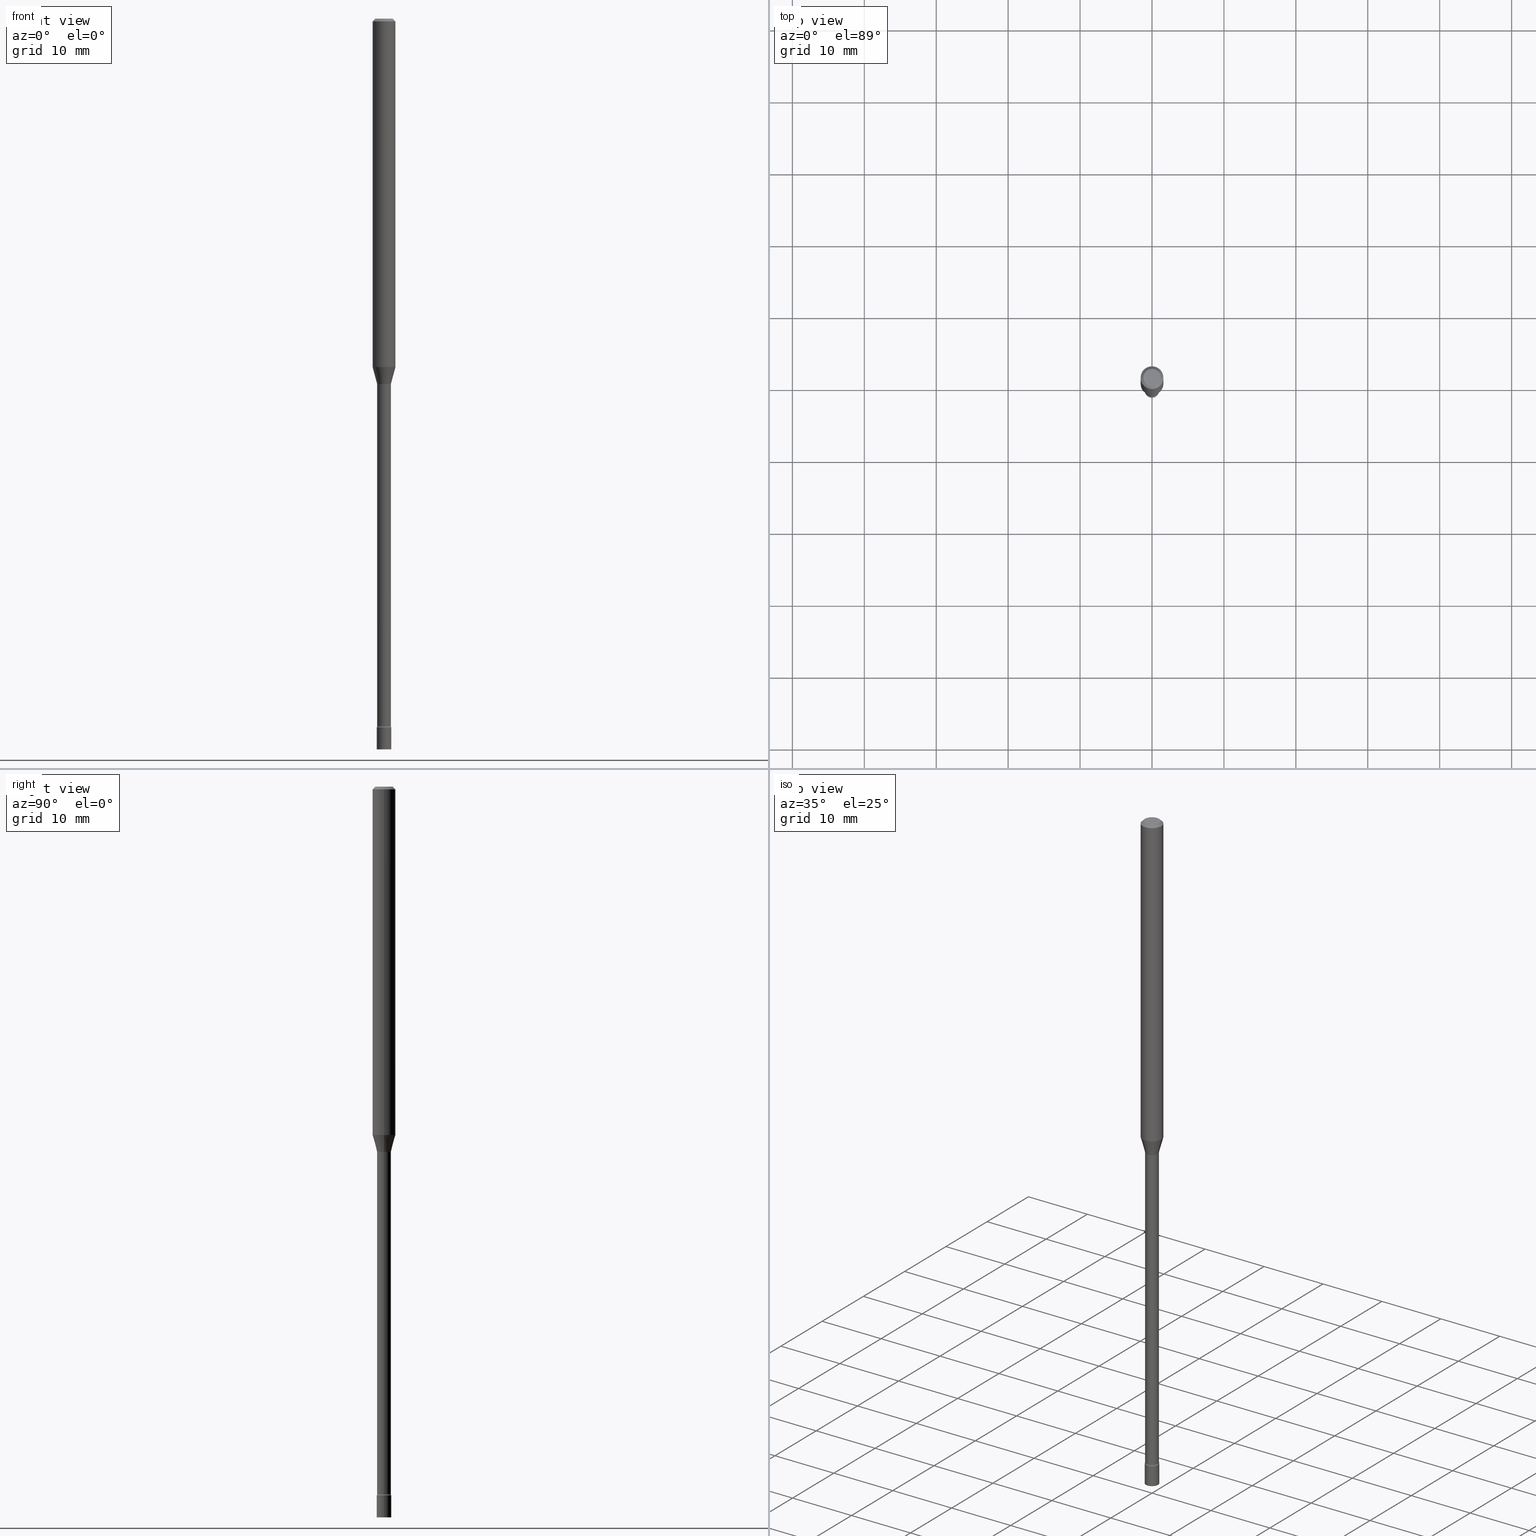
[diagram: canonical four-view strip — front | top / right | iso, engineering-drawing reading convention]
A machine part, canonical four-view strip (front | top / right | iso — engineering-drawing reading convention). The complete STEP part file that produces these views, byte-faithful:
ISO-10303-21;
HEADER;
FILE_DESCRIPTION (( 'STEP AP203' ),
    '1' );
FILE_NAME ('09724.STEP',
    '2024-03-09T01:17:45',
    ( '' ),
    ( '' ),
    'SwSTEP 2.0',
    'SolidWorks 2023',
    '' );
FILE_SCHEMA (( 'CONFIG_CONTROL_DESIGN' ));
ENDSEC;

DATA;
#1 = DIRECTION ( 'NONE',  ( 1.000000000000000000, -6.982962677686284065E-15, 0.000000000000000000 ) ) ;
#2 = VECTOR ( 'NONE', #272, 39.37007874015748143 ) ;
#3 = ORIENTED_EDGE ( 'NONE', *, *, #23, .T. ) ;
#4 = CIRCLE ( 'NONE', #262, 0.04749999999999999362 ) ;
#5 = DIRECTION ( 'NONE',  ( -2.445468806185136597E-29, 3.491481338843145583E-15, 1.000000000000000000 ) ) ;
#6 = ORIENTED_EDGE ( 'NONE', *, *, #394, .T. ) ;
#7 = DIRECTION ( 'NONE',  ( -2.445468806185136597E-29, 3.491481338843145583E-15, 1.000000000000000000 ) ) ;
#8 = EDGE_CURVE ( 'NONE', #124, #239, #4, .T. ) ;
#9 = ORIENTED_EDGE ( 'NONE', *, *, #89, .F. ) ;
#10 = CARTESIAN_POINT ( 'NONE',  ( 0.000000000000000000, 0.000000000000000000, 0.000000000000000000 ) ) ;
#11 = ORIENTED_EDGE ( 'NONE', *, *, #98, .T. ) ;
#12 = CIRCLE ( 'NONE', #58, 0.06250000000000000000 ) ;
#13 = DIRECTION ( 'NONE',  ( 1.000000000000000000, -6.982962677686265922E-15, 4.876176775795935793E-29 ) ) ;
#14 = CARTESIAN_POINT ( 'NONE',  ( 0.05260000000000022990, -1.388583497727375524E-14, -3.871861204020250025 ) ) ;
#15 = ADVANCED_FACE ( 'NONE', ( #222 ), #107, .T. ) ;
#16 = APPROVAL ( #26, 'UNSPECIFIED' ) ;
#17 = CARTESIAN_POINT ( 'NONE',  ( 9.488418967998330085E-29, -1.354694759471140570E-14, -3.880000000000000338 ) ) ;
#18 = DIRECTION ( 'NONE',  ( 1.000000000000000000, -6.982962677686284065E-15, 0.000000000000000000 ) ) ;
#19 = FACE_OUTER_BOUND ( 'NONE', #416, .T. ) ;
#20 = DESIGN_CONTEXT ( 'detailed design', #424, 'design' ) ;
#21 = AXIS2_PLACEMENT_3D ( 'NONE', #294, #306, #55 ) ;
#22 = LENGTH_MEASURE_WITH_UNIT ( LENGTH_MEASURE( 0.02539999999999999897 ), #225 );
#23 = EDGE_CURVE ( 'NONE', #290, #414, #355, .T. ) ;
#24 = VERTEX_POINT ( 'NONE', #76 ) ;
#25 = PRODUCT ( '09724', '09724', '', ( #510 ) ) ;
#26 = APPROVAL_STATUS ( 'not_yet_approved' ) ;
#27 = CALENDAR_DATE ( 2024, 8, 3 ) ;
#28 = AXIS2_PLACEMENT_3D ( 'NONE', #349, #270, #265 ) ;
#29 = AXIS2_PLACEMENT_3D ( 'NONE', #271, #150, #466 ) ;
#30 = EDGE_CURVE ( 'NONE', #153, #336, #452, .T. ) ;
#31 = PERSON_AND_ORGANIZATION ( #371, #432 ) ;
#32 = ORIENTED_EDGE ( 'NONE', *, *, #245, .T. ) ;
#33 = CARTESIAN_POINT ( 'NONE',  ( 9.488418967998330085E-29, -1.354694759471140570E-14, -3.880000000000000338 ) ) ;
#34 = ORIENTED_EDGE ( 'NONE', *, *, #66, .F. ) ;
#35 = DIRECTION ( 'NONE',  ( 1.000000000000000000, -6.982962677686261977E-15, 0.000000000000000000 ) ) ;
#36 = CIRCLE ( 'NONE', #110, 0.04000000000000000083 ) ;
#37 = EDGE_CURVE ( 'NONE', #290, #326, #111, .T. ) ;
#38 = VECTOR ( 'NONE', #63, 39.37007874015748143 ) ;
#39 = DATE_TIME_ROLE ( 'creation_date' ) ;
#40 = CC_DESIGN_PERSON_AND_ORGANIZATION_ASSIGNMENT ( #45, #83, ( #68 ) ) ;
#41 = CARTESIAN_POINT ( 'NONE',  ( 0.03811111260566397985, -7.242431160203128741E-15, -1.998092501787273045 ) ) ;
#42 = ORIENTED_EDGE ( 'NONE', *, *, #237, .F. ) ;
#43 = DIRECTION ( 'NONE',  ( -2.438088387897960049E-29, 3.491481338843145188E-15, 1.000000000000000000 ) ) ;
#44 = ORIENTED_EDGE ( 'NONE', *, *, #114, .F. ) ;
#45 = PERSON_AND_ORGANIZATION ( #371, #432 ) ;
#46 = LINE ( 'NONE', #196, #509 ) ;
#47 = AXIS2_PLACEMENT_3D ( 'NONE', #413, #382, #95 ) ;
#48 = ORIENTED_EDGE ( 'NONE', *, *, #299, .T. ) ;
#49 = SECURITY_CLASSIFICATION ( '', '', #78 ) ;
#50 = DIRECTION ( 'NONE',  ( 1.000000000000000000, -6.982962677686261977E-15, 4.883557194083110659E-29 ) ) ;
#51 = EDGE_LOOP ( 'NONE', ( #44, #256, #6, #324 ) ) ;
#52 = DIRECTION ( 'NONE',  ( 1.000000000000000000, -6.982962677686284065E-15, 0.000000000000000000 ) ) ;
#53 = ORIENTED_EDGE ( 'NONE', *, *, #393, .T. ) ;
#54 = EDGE_CURVE ( 'NONE', #340, #202, #457, .T. ) ;
#55 = DIRECTION ( 'NONE',  ( 1.000000000000000000, -6.982962677686262766E-15, 0.000000000000000000 ) ) ;
#56 = ADVANCED_FACE ( 'NONE', ( #65 ), #339, .T. ) ;
#57 = ORIENTED_EDGE ( 'NONE', *, *, #507, .T. ) ;
#58 = AXIS2_PLACEMENT_3D ( 'NONE', #169, #301, #296 ) ;
#59 = FACE_OUTER_BOUND ( 'NONE', #491, .T. ) ;
#60 = CC_DESIGN_DATE_AND_TIME_ASSIGNMENT ( #475, #407, ( #49 ) ) ;
#61 = DIRECTION ( 'NONE',  ( -2.445468806185136597E-29, 3.491481338843145583E-15, 1.000000000000000000 ) ) ;
#62 = DIRECTION ( 'NONE',  ( -2.445468806185136597E-29, 3.491481338843145583E-15, 1.000000000000000000 ) ) ;
#63 = DIRECTION ( 'NONE',  ( -2.445468806185136877E-29, 3.491481338843145188E-15, 1.000000000000000000 ) ) ;
#64 = DIRECTION ( 'NONE',  ( -2.445468806185136597E-29, 3.491481338843145583E-15, 1.000000000000000000 ) ) ;
#65 = FACE_OUTER_BOUND ( 'NONE', #254, .T. ) ;
#66 = EDGE_CURVE ( 'NONE', #202, #379, #497, .T. ) ;
#67 = CIRCLE ( 'NONE', #175, 0.01500000000000001853 ) ;
#68 = PRODUCT_DEFINITION_FORMATION_WITH_SPECIFIED_SOURCE ( 'ANY', '', #25, .NOT_KNOWN. ) ;
#69 = CARTESIAN_POINT ( 'NONE',  ( 0.04000000000000000083, -1.382626610181885731E-14, -3.880000000000000338 ) ) ;
#70 = EDGE_CURVE ( 'NONE', #128, #414, #361, .T. ) ;
#71 = DIRECTION ( 'NONE',  ( -2.445468806185136597E-29, 3.491481338843145583E-15, 1.000000000000000000 ) ) ;
#72 = CIRCLE ( 'NONE', #131, 0.04000000000000000083 ) ;
#73 = DIRECTION ( 'NONE',  ( -1.000000000000000000, 6.982962677686266711E-15, 0.000000000000000000 ) ) ;
#74 = AXIS2_PLACEMENT_3D ( 'NONE', #419, #61, #381 ) ;
#75 = DATE_AND_TIME ( #240, #234 ) ;
#76 = CARTESIAN_POINT ( 'NONE',  ( 0.03811111260566397985, -7.242431160203128741E-15, -1.998092501787273045 ) ) ;
#77 = ORIENTED_EDGE ( 'NONE', *, *, #113, .T. ) ;
#78 = SECURITY_CLASSIFICATION_LEVEL ( 'unclassified' ) ;
#79 = DIRECTION ( 'NONE',  ( 2.438088387897960049E-29, -3.491481338843145188E-15, -1.000000000000000000 ) ) ;
#80 = DIMENSIONAL_EXPONENTS ( 1.000000000000000000, 0.000000000000000000, 0.000000000000000000, 0.000000000000000000, 0.000000000000000000, 0.000000000000000000, 0.000000000000000000 ) ;
#81 = CARTESIAN_POINT ( 'NONE',  ( 0.04749999999999999362, -4.035134999187579609E-16, -2.891391092786643933E-17 ) ) ;
#82 = CIRCLE ( 'NONE', #21, 0.06250000000000000000 ) ;
#83 = PERSON_AND_ORGANIZATION_ROLE ( 'creator' ) ;
#84 = CARTESIAN_POINT ( 'NONE',  ( -0.03759999999999999454, -9.987030307200107072E-15, -2.001974787463811190 ) ) ;
#85 = ORIENTED_EDGE ( 'NONE', *, *, #205, .T. ) ;
#86 = PLANE ( 'NONE',  #274 ) ;
#87 = ADVANCED_FACE ( 'NONE', ( #19 ), #151, .T. ) ;
#88 = ORIENTED_EDGE ( 'NONE', *, *, #341, .F. ) ;
#89 = EDGE_CURVE ( 'NONE', #359, #476, #400, .T. ) ;
#90 = DIRECTION ( 'NONE',  ( -2.445468806185136597E-29, 3.491481338843145583E-15, 1.000000000000000000 ) ) ;
#91 = AXIS2_PLACEMENT_3D ( 'NONE', #378, #494, #13 ) ;
#92 = CC_DESIGN_APPROVAL ( #230, ( #49 ) ) ;
#93 = ORIENTED_EDGE ( 'NONE', *, *, #205, .F. ) ;
#94 = UNCERTAINTY_MEASURE_WITH_UNIT (LENGTH_MEASURE( 1.000000000000000082E-05 ), #229, 'distance_accuracy_value', 'NONE');
#95 = DIRECTION ( 'NONE',  ( 1.000000000000000000, -6.982962677686267499E-15, 4.876681293081646444E-29 ) ) ;
#96 = VERTEX_POINT ( 'NONE', #463 ) ;
#97 = CARTESIAN_POINT ( 'NONE',  ( 4.895766893511868006E-29, -6.989857611264368100E-15, -2.001974787463811190 ) ) ;
#98 = EDGE_CURVE ( 'NONE', #379, #99, #358, .T. ) ;
#99 = VERTEX_POINT ( 'NONE', #421 ) ;
#100 = MANIFOLD_SOLID_BREP ( 'Body-Move/Copy2[1]', #244 ) ;
#101 = CARTESIAN_POINT ( 'NONE',  ( -0.03811111260566397985, -6.459961901895501616E-15, -1.998092501787273045 ) ) ;
#102 = DIRECTION ( 'NONE',  ( -2.445468806185136877E-29, 3.491481338843145188E-15, 1.000000000000000000 ) ) ;
#103 = AXIS2_PLACEMENT_3D ( 'NONE', #201, #362, #18 ) ;
#104 =( GEOMETRIC_REPRESENTATION_CONTEXT ( 3 ) GLOBAL_UNCERTAINTY_ASSIGNED_CONTEXT ( ( #94 ) ) GLOBAL_UNIT_ASSIGNED_CONTEXT ( ( #229, #148, #186 ) ) REPRESENTATION_CONTEXT ( 'NONE', 'WORKASPACE' ) );
#105 = AXIS2_PLACEMENT_3D ( 'NONE', #499, #385, #73 ) ;
#106 = DIRECTION ( 'NONE',  ( 1.000000000000000000, -6.982962677686265922E-15, 4.876176775795935793E-29 ) ) ;
#107 = CYLINDRICAL_SURFACE ( 'NONE', #157, 0.04000000000000000083 ) ;
#108 = DIRECTION ( 'NONE',  ( 1.000000000000000000, 0.000000000000000000, 0.000000000000000000 ) ) ;
#109 = EDGE_LOOP ( 'NONE', ( #334, #141 ) ) ;
#110 = AXIS2_PLACEMENT_3D ( 'NONE', #33, #365, #1 ) ;
#111 = CIRCLE ( 'NONE', #329, 0.01499999999999998557 ) ;
#112 = DIRECTION ( 'NONE',  ( 1.000000000000000000, -6.982962677686266711E-15, 0.000000000000000000 ) ) ;
#113 = EDGE_CURVE ( 'NONE', #96, #99, #503, .T. ) ;
#114 = EDGE_CURVE ( 'NONE', #340, #128, #67, .T. ) ;
#115 = CARTESIAN_POINT ( 'NONE',  ( 9.468515796309946539E-29, -1.351853114042745669E-14, -3.871861204020250025 ) ) ;
#116 = DIRECTION ( 'NONE',  ( 1.000000000000000000, -6.982962677686267499E-15, 4.876681293081646444E-29 ) ) ;
#117 = DIRECTION ( 'NONE',  ( -2.445468806185136597E-29, 3.491481338843145583E-15, 1.000000000000000000 ) ) ;
#118 = CONICAL_SURFACE ( 'NONE', #29, 0.06250000000000000000, 0.7853981633974483900 ) ;
#119 = DIRECTION ( 'NONE',  ( -2.445468806185136597E-29, 3.491481338843145583E-15, 1.000000000000000000 ) ) ;
#120 = CC_DESIGN_PERSON_AND_ORGANIZATION_ASSIGNMENT ( #195, #397, ( #68 ) ) ;
#121 = COORDINATED_UNIVERSAL_TIME_OFFSET ( 5, 0, .BEHIND. ) ;
#122 = FACE_OUTER_BOUND ( 'NONE', #109, .T. ) ;
#123 = DIRECTION ( 'NONE',  ( -2.445468806185136877E-29, 3.491481338843145188E-15, 1.000000000000000000 ) ) ;
#124 = VERTEX_POINT ( 'NONE', #81 ) ;
#125 = CARTESIAN_POINT ( 'NONE',  ( -0.06250000000000000000, -6.214416862655221682E-15, -1.907071934891535037 ) ) ;
#126 = ORIENTED_EDGE ( 'NONE', *, *, #506, .F. ) ;
#127 = CARTESIAN_POINT ( 'NONE',  ( 0.000000000000000000, 0.000000000000000000, 0.000000000000000000 ) ) ;
#128 = VERTEX_POINT ( 'NONE', #84 ) ;
#129 = DIRECTION ( 'NONE',  ( 1.000000000000000000, -6.982962677686261977E-15, 4.883557194083110659E-29 ) ) ;
#130 = CIRCLE ( 'NONE', #470, 0.01500000000000001853 ) ;
#131 = AXIS2_PLACEMENT_3D ( 'NONE', #423, #309, #184 ) ;
#132 = VERTEX_POINT ( 'NONE', #485 ) ;
#133 = AXIS2_PLACEMENT_3D ( 'NONE', #425, #298, #261 ) ;
#134 = EDGE_CURVE ( 'NONE', #476, #359, #36, .T. ) ;
#135 = CYLINDRICAL_SURFACE ( 'NONE', #402, 0.06250000000000000000 ) ;
#136 = EDGE_CURVE ( 'NONE', #340, #24, #431, .T. ) ;
#137 = ORIENTED_EDGE ( 'NONE', *, *, #30, .T. ) ;
#138 = LINE ( 'NONE', #454, #515 ) ;
#139 = CARTESIAN_POINT ( 'NONE',  ( -0.06250000000000000000, 4.440892098500626162E-16, -3.074334431409316114E-30 ) ) ;
#140 = CYLINDRICAL_SURFACE ( 'NONE', #218, 0.04000000000000000083 ) ;
#141 = ORIENTED_EDGE ( 'NONE', *, *, #443, .F. ) ;
#142 = VECTOR ( 'NONE', #430, 39.37007874015748143 ) ;
#143 = CC_DESIGN_APPROVAL ( #221, ( #68 ) ) ;
#144 = CC_DESIGN_PERSON_AND_ORGANIZATION_ASSIGNMENT ( #31, #388, ( #25 ) ) ;
#145 = CARTESIAN_POINT ( 'NONE',  ( 0.000000000000000000, 0.000000000000000000, 0.000000000000000000 ) ) ;
#146 = CARTESIAN_POINT ( 'NONE',  ( 0.06250000000000000000, -4.364351673553916694E-16, 3.047610484872459871E-30 ) ) ;
#147 = CARTESIAN_POINT ( 'NONE',  ( 9.488418967998330085E-29, -1.354694759471140570E-14, -3.880000000000000338 ) ) ;
#148 =( NAMED_UNIT ( * ) PLANE_ANGLE_UNIT ( ) SI_UNIT ( $, .RADIAN. ) );
#149 = AXIS2_PLACEMENT_3D ( 'NONE', #176, #7, #129 ) ;
#150 = DIRECTION ( 'NONE',  ( 2.445468806185136597E-29, -3.491481338843145583E-15, -1.000000000000000000 ) ) ;
#151 = CYLINDRICAL_SURFACE ( 'NONE', #74, 0.06250000000000000000 ) ;
#152 = DIRECTION ( 'NONE',  ( 1.000000000000000000, -6.982962677686284065E-15, 0.000000000000000000 ) ) ;
#153 = VERTEX_POINT ( 'NONE', #167 ) ;
#154 = ORIENTED_EDGE ( 'NONE', *, *, #212, .T. ) ;
#155 = CONICAL_SURFACE ( 'NONE', #449, 0.03811111260566397985, 0.2617993877991495744 ) ;
#156 = CARTESIAN_POINT ( 'NONE',  ( 0.03760000000000024434, -1.378109053710846187E-14, -3.871861204020250025 ) ) ;
#157 = AXIS2_PLACEMENT_3D ( 'NONE', #383, #317, #434 ) ;
#158 = COORDINATED_UNIVERSAL_TIME_OFFSET ( 5, 0, .BEHIND. ) ;
#159 = DIRECTION ( 'NONE',  ( 1.000000000000000000, -6.982962677686265922E-15, 4.876176775795935793E-29 ) ) ;
#160 = ORIENTED_EDGE ( 'NONE', *, *, #375, .T. ) ;
#161 = CARTESIAN_POINT ( 'NONE',  ( -0.04749999999999999362, 3.578768372314209027E-16, -2.891391092787141902E-17 ) ) ;
#162 = ORIENTED_EDGE ( 'NONE', *, *, #23, .F. ) ;
#163 = DIRECTION ( 'NONE',  ( 1.000000000000000000, -6.982962677686261977E-15, 0.000000000000000000 ) ) ;
#164 = CIRCLE ( 'NONE', #390, 0.03759999999999999454 ) ;
#165 = AXIS2_PLACEMENT_3D ( 'NONE', #147, #426, #152 ) ;
#166 = ORIENTED_EDGE ( 'NONE', *, *, #98, .F. ) ;
#167 = CARTESIAN_POINT ( 'NONE',  ( -0.03760000000000024434, -1.325704878609451034E-14, -3.871861204020250025 ) ) ;
#168 = ORIENTED_EDGE ( 'NONE', *, *, #480, .F. ) ;
#169 = CARTESIAN_POINT ( 'NONE',  ( 3.668203209277712094E-31, -5.237222008264728876E-17, -0.01500000000000003067 ) ) ;
#170 = ORIENTED_EDGE ( 'NONE', *, *, #8, .F. ) ;
#171 = DIRECTION ( 'NONE',  ( -2.445468806185136597E-29, 3.491481338843145583E-15, 1.000000000000000000 ) ) ;
#172 = CC_DESIGN_DATE_AND_TIME_ASSIGNMENT ( #275, #39, ( #396 ) ) ;
#173 = AXIS2_PLACEMENT_3D ( 'NONE', #408, #369, #405 ) ;
#174 = EDGE_LOOP ( 'NONE', ( #453, #224, #343, #512 ) ) ;
#175 = AXIS2_PLACEMENT_3D ( 'NONE', #236, #392, #204 ) ;
#176 = CARTESIAN_POINT ( 'NONE',  ( 4.895766893511868006E-29, -6.989857611264368100E-15, -2.001974787463811190 ) ) ;
#177 = DIRECTION ( 'NONE',  ( 1.000000000000000000, -6.982962677686274599E-15, 0.000000000000000000 ) ) ;
#178 = DIRECTION ( 'NONE',  ( 1.000000000000000000, -6.982962677686259611E-15, 0.000000000000000000 ) ) ;
#179 = CARTESIAN_POINT ( 'NONE',  ( 0.03760000000000011944, -2.625593966810044412E-16, 1.833442467699277718E-30 ) ) ;
#180 = ADVANCED_FACE ( 'NONE', ( #439 ), #351, .F. ) ;
#181 = PLANE ( 'NONE',  #492 ) ;
#182 = DIRECTION ( 'NONE',  ( 1.000000000000000000, -6.982962677686284065E-15, 0.000000000000000000 ) ) ;
#183 = CIRCLE ( 'NONE', #337, 0.03811111260566397985 ) ;
#184 = DIRECTION ( 'NONE',  ( 1.000000000000000000, -6.982962677686284065E-15, 0.000000000000000000 ) ) ;
#185 = ORIENTED_EDGE ( 'NONE', *, *, #490, .T. ) ;
#186 =( NAMED_UNIT ( * ) SI_UNIT ( $, .STERADIAN. ) SOLID_ANGLE_UNIT ( ) );
#187 = EDGE_CURVE ( 'NONE', #24, #340, #183, .T. ) ;
#188 = APPROVAL_ROLE ( '' ) ;
#189 = AXIS2_PLACEMENT_3D ( 'NONE', #474, #348, #264 ) ;
#190 = CC_DESIGN_SECURITY_CLASSIFICATION ( #49, ( #68 ) ) ;
#191 = APPROVAL_DATE_TIME ( #472, #16 ) ;
#192 = PERSON_AND_ORGANIZATION ( #371, #432 ) ;
#193 = ORIENTED_EDGE ( 'NONE', *, *, #37, .F. ) ;
#194 = EDGE_LOOP ( 'NONE', ( #168, #48, #3, #482 ) ) ;
#195 = PERSON_AND_ORGANIZATION ( #371, #432 ) ;
#196 = CARTESIAN_POINT ( 'NONE',  ( 0.06250000000000000000, -4.811533449433680977E-16, -0.01500000000000003067 ) ) ;
#197 = ADVANCED_FACE ( 'NONE', ( #479 ), #517, .T. ) ;
#198 = ORIENTED_EDGE ( 'NONE', *, *, #375, .F. ) ;
#199 = APPROVAL_STATUS ( 'not_yet_approved' ) ;
#200 = VECTOR ( 'NONE', #395, 39.37007874015748143 ) ;
#201 = CARTESIAN_POINT ( 'NONE',  ( 9.781875224740546387E-29, -1.396592535537258233E-14, -4.000000000000000000 ) ) ;
#202 = VERTEX_POINT ( 'NONE', #125 ) ;
#203 = CARTESIAN_POINT ( 'NONE',  ( 2.793185071075455388E-16, 0.03999999999998644917, -3.880000000000000338 ) ) ;
#204 = DIRECTION ( 'NONE',  ( -1.000000000000000000, 7.105427357600982137E-15, 0.000000000000000000 ) ) ;
#205 = EDGE_CURVE ( 'NONE', #124, #99, #46, .T. ) ;
#206 = ORIENTED_EDGE ( 'NONE', *, *, #333, .F. ) ;
#207 = ADVANCED_BREP_SHAPE_REPRESENTATION ( '09724', ( #100, #279, #391 ), #104 ) ;
#208 = LINE ( 'NONE', #325, #327 ) ;
#209 = AXIS2_PLACEMENT_3D ( 'NONE', #97, #62, #50 ) ;
#210 = VERTEX_POINT ( 'NONE', #442 ) ;
#211 = FACE_OUTER_BOUND ( 'NONE', #404, .T. ) ;
#212 = EDGE_CURVE ( 'NONE', #239, #379, #246, .T. ) ;
#213 = ORIENTED_EDGE ( 'NONE', *, *, #333, .T. ) ;
#214 = ADVANCED_FACE ( 'NONE', ( #122 ), #398, .F. ) ;
#215 = FACE_OUTER_BOUND ( 'NONE', #406, .T. ) ;
#216 = ORIENTED_EDGE ( 'NONE', *, *, #299, .F. ) ;
#217 = FACE_OUTER_BOUND ( 'NONE', #247, .T. ) ;
#218 = AXIS2_PLACEMENT_3D ( 'NONE', #10, #171, #106 ) ;
#219 = EDGE_LOOP ( 'NONE', ( #315, #486, #376, #513 ) ) ;
#220 = CARTESIAN_POINT ( 'NONE',  ( -0.03999999999999999389, -1.326273050040736537E-14, -3.880000000000000338 ) ) ;
#221 = APPROVAL ( #319, 'UNSPECIFIED' ) ;
#222 = FACE_OUTER_BOUND ( 'NONE', #285, .T. ) ;
#223 = CARTESIAN_POINT ( 'NONE',  ( 2.793185071075484970E-16, 0.03999999999998603284, -4.000000000000000000 ) ) ;
#224 = ORIENTED_EDGE ( 'NONE', *, *, #136, .T. ) ;
#225 =( LENGTH_UNIT ( ) NAMED_UNIT ( * ) SI_UNIT ( $, .METRE. ) );
#226 = CARTESIAN_POINT ( 'NONE',  ( -0.03811111260566397985, -6.705506941135780762E-15, -1.998092501787273045 ) ) ;
#227 = CIRCLE ( 'NONE', #303, 0.03760000000000024434 ) ;
#228 = VECTOR ( 'NONE', #304, 39.37007874015748143 ) ;
#229 =( CONVERSION_BASED_UNIT ( 'INCH', #22 ) LENGTH_UNIT ( ) NAMED_UNIT ( #80 ) );
#230 = APPROVAL ( #199, 'UNSPECIFIED' ) ;
#231 = DIRECTION ( 'NONE',  ( 0.000000000000000000, 0.000000000000000000, 1.000000000000000000 ) ) ;
#232 = PERSON_AND_ORGANIZATION ( #371, #432 ) ;
#233 = TOROIDAL_SURFACE ( 'NONE', #28, 0.05260000000000022990, 0.01499999999999998557 ) ;
#234 = LOCAL_TIME ( 20, 17, 45.00000000000000000, #158 ) ;
#235 = FACE_OUTER_BOUND ( 'NONE', #511, .T. ) ;
#236 = CARTESIAN_POINT ( 'NONE',  ( -0.05260000000000000092, -6.616112132254555544E-15, -2.001974787463811190 ) ) ;
#237 = EDGE_CURVE ( 'NONE', #24, #96, #281, .T. ) ;
#238 = DIRECTION ( 'NONE',  ( 7.105427357601001859E-15, 1.000000000000000000, -3.491481338843145583E-15 ) ) ;
#239 = VERTEX_POINT ( 'NONE', #161 ) ;
#240 = CALENDAR_DATE ( 2024, 8, 3 ) ;
#241 = DIRECTION ( 'NONE',  ( 1.000000000000000000, -6.982962677686270655E-15, 4.883557194083114583E-29 ) ) ;
#242 = TOROIDAL_SURFACE ( 'NONE', #209, 0.05260000000000000092, 0.01500000000000002373 ) ;
#243 = CARTESIAN_POINT ( 'NONE',  ( 4.886272884993195824E-29, -6.976302683272678303E-15, -1.998092501787273045 ) ) ;
#244 = CLOSED_SHELL ( 'NONE', ( #15, #197, #462, #321 ) ) ;
#245 = EDGE_CURVE ( 'NONE', #210, #359, #208, .T. ) ;
#246 = LINE ( 'NONE', #332, #200 ) ;
#247 = EDGE_LOOP ( 'NONE', ( #185, #276, #363, #162 ) ) ;
#248 = CARTESIAN_POINT ( 'NONE',  ( 4.886272884993195824E-29, -6.976302683272678303E-15, -1.998092501787273045 ) ) ;
#249 = ORIENTED_EDGE ( 'NONE', *, *, #245, .F. ) ;
#250 = AXIS2_PLACEMENT_3D ( 'NONE', #248, #5, #35 ) ;
#251 = CARTESIAN_POINT ( 'NONE',  ( 0.05260000000000000092, -7.357161448110665073E-15, -2.001974787463811190 ) ) ;
#252 = EDGE_LOOP ( 'NONE', ( #293, #330 ) ) ;
#253 = CARTESIAN_POINT ( 'NONE',  ( -0.06250000000000000000, -2.911349936443903664E-15, -0.01500000000000003067 ) ) ;
#254 = EDGE_LOOP ( 'NONE', ( #170, #85, #213, #409 ) ) ;
#255 = DIRECTION ( 'NONE',  ( -1.000000000000000000, 6.982962677686265922E-15, -4.876176775795935793E-29 ) ) ;
#256 = ORIENTED_EDGE ( 'NONE', *, *, #187, .F. ) ;
#257 = DIRECTION ( 'NONE',  ( 1.000000000000000000, -6.982962677686262766E-15, 0.000000000000000000 ) ) ;
#258 = VECTOR ( 'NONE', #287, 39.37007874015748143 ) ;
#259 = ADVANCED_FACE ( 'NONE', ( #357 ), #86, .F. ) ;
#260 = CC_DESIGN_APPROVAL ( #16, ( #396 ) ) ;
#261 = DIRECTION ( 'NONE',  ( 1.000000000000000000, -6.982962677686261977E-15, 0.000000000000000000 ) ) ;
#262 = AXIS2_PLACEMENT_3D ( 'NONE', #350, #117, #116 ) ;
#263 = PRODUCT_RELATED_PRODUCT_CATEGORY ( 'detail', '', ( #25 ) ) ;
#264 = DIRECTION ( 'NONE',  ( 1.000000000000000000, -6.982962677686266711E-15, 0.000000000000000000 ) ) ;
#265 = DIRECTION ( 'NONE',  ( 1.000000000000000000, -6.982962677686270655E-15, 4.883557194083114583E-29 ) ) ;
#266 = DIRECTION ( 'NONE',  ( -6.982962677686266711E-15, -1.000000000000000000, 3.491481338843145583E-15 ) ) ;
#267 = AXIS2_PLACEMENT_3D ( 'NONE', #477, #119, #278 ) ;
#268 = LOCAL_TIME ( 20, 17, 45.00000000000000000, #314 ) ;
#269 = ADVANCED_FACE ( 'NONE', ( #514 ), #458, .T. ) ;
#270 = DIRECTION ( 'NONE',  ( -2.445468806185136597E-29, 3.491481338843145583E-15, 1.000000000000000000 ) ) ;
#271 = CARTESIAN_POINT ( 'NONE',  ( 3.668203209277712094E-31, -5.237222008264728876E-17, -0.01500000000000003067 ) ) ;
#272 = DIRECTION ( 'NONE',  ( -2.445468806185136877E-29, 3.491481338843145188E-15, 1.000000000000000000 ) ) ;
#273 = ORIENTED_EDGE ( 'NONE', *, *, #308, .T. ) ;
#274 = AXIS2_PLACEMENT_3D ( 'NONE', #437, #79, #289 ) ;
#275 = DATE_AND_TIME ( #473, #268 ) ;
#276 = ORIENTED_EDGE ( 'NONE', *, *, #480, .T. ) ;
#277 = CALENDAR_DATE ( 2024, 8, 3 ) ;
#278 = DIRECTION ( 'NONE',  ( 1.000000000000000000, -6.982962677686266711E-15, 0.000000000000000000 ) ) ;
#279 = MANIFOLD_SOLID_BREP ( 'Body-Move/Copy2[2]', #386 ) ;
#280 = SHAPE_DEFINITION_REPRESENTATION ( #302, #207 ) ;
#281 = LINE ( 'NONE', #41, #258 ) ;
#282 = COORDINATED_UNIVERSAL_TIME_OFFSET ( 5, 0, .BEHIND. ) ;
#283 = CIRCLE ( 'NONE', #103, 0.04000000000000000083 ) ;
#284 = FACE_OUTER_BOUND ( 'NONE', #194, .T. ) ;
#285 = EDGE_LOOP ( 'NONE', ( #495, #32, #444, #446 ) ) ;
#286 = PERSON_AND_ORGANIZATION ( #371, #432 ) ;
#287 = DIRECTION ( 'NONE',  ( 0.2588190451025209060, 1.565188264969625123E-15, 0.9659258262890682012 ) ) ;
#288 = ORIENTED_EDGE ( 'NONE', *, *, #134, .T. ) ;
#289 = DIRECTION ( 'NONE',  ( -1.000000000000000000, 6.982962677686265922E-15, -4.876176775795935793E-29 ) ) ;
#290 = VERTEX_POINT ( 'NONE', #156 ) ;
#291 = TOROIDAL_SURFACE ( 'NONE', #149, 0.05260000000000000092, 0.01500000000000002373 ) ;
#292 = CARTESIAN_POINT ( 'NONE',  ( 4.886272884993195824E-29, -6.976302683272678303E-15, -1.998092501787273045 ) ) ;
#293 = ORIENTED_EDGE ( 'NONE', *, *, #341, .T. ) ;
#294 = CARTESIAN_POINT ( 'NONE',  ( 4.663684927928380313E-29, -6.658506072505285087E-15, -1.907071934891535037 ) ) ;
#295 = ORIENTED_EDGE ( 'NONE', *, *, #300, .T. ) ;
#296 = DIRECTION ( 'NONE',  ( 1.000000000000000000, -6.982962677686266711E-15, 0.000000000000000000 ) ) ;
#297 = ADVANCED_FACE ( 'NONE', ( #284 ), #487, .T. ) ;
#298 = DIRECTION ( 'NONE',  ( -2.445468806185136597E-29, 3.491481338843145583E-15, 1.000000000000000000 ) ) ;
#299 = EDGE_CURVE ( 'NONE', #153, #290, #469, .T. ) ;
#300 = EDGE_CURVE ( 'NONE', #210, #132, #283, .T. ) ;
#301 = DIRECTION ( 'NONE',  ( -2.445468806185136597E-29, 3.491481338843145583E-15, 1.000000000000000000 ) ) ;
#302 = PRODUCT_DEFINITION_SHAPE ( 'NONE', 'NONE',  #396 ) ;
#303 = AXIS2_PLACEMENT_3D ( 'NONE', #115, #71, #112 ) ;
#304 = DIRECTION ( 'NONE',  ( -0.2588190451025209060, 5.211531920934547097E-15, 0.9659258262890682012 ) ) ;
#305 = AXIS2_PLACEMENT_3D ( 'NONE', #17, #345, #182 ) ;
#306 = DIRECTION ( 'NONE',  ( -2.445468806185136597E-29, 3.491481338843145583E-15, 1.000000000000000000 ) ) ;
#307 = ORIENTED_EDGE ( 'NONE', *, *, #113, .F. ) ;
#308 = EDGE_CURVE ( 'NONE', #132, #476, #138, .T. ) ;
#309 = DIRECTION ( 'NONE',  ( -2.445468806185136597E-29, 3.491481338843145583E-15, 1.000000000000000000 ) ) ;
#310 = ADVANCED_FACE ( 'NONE', ( #372 ), #242, .F. ) ;
#311 = CARTESIAN_POINT ( 'NONE',  ( -0.03760000000000011944, 2.671640686457985185E-16, -1.849519593935850532E-30 ) ) ;
#312 = CIRCLE ( 'NONE', #47, 0.04749999999999999362 ) ;
#313 = COORDINATED_UNIVERSAL_TIME_OFFSET ( 5, 0, .BEHIND. ) ;
#314 = COORDINATED_UNIVERSAL_TIME_OFFSET ( 5, 0, .BEHIND. ) ;
#315 = ORIENTED_EDGE ( 'NONE', *, *, #136, .F. ) ;
#316 = EDGE_LOOP ( 'NONE', ( #288, #455 ) ) ;
#317 = DIRECTION ( 'NONE',  ( -2.445468806185136597E-29, 3.491481338843145583E-15, 1.000000000000000000 ) ) ;
#318 = ORIENTED_EDGE ( 'NONE', *, *, #37, .T. ) ;
#319 = APPROVAL_STATUS ( 'not_yet_approved' ) ;
#320 = DIRECTION ( 'NONE',  ( 1.000000000000000000, -6.982962677686265922E-15, 4.876176775795935793E-29 ) ) ;
#321 = ADVANCED_FACE ( 'NONE', ( #59 ), #181, .T. ) ;
#322 = PERSON_AND_ORGANIZATION ( #371, #432 ) ;
#323 = DIRECTION ( 'NONE',  ( 1.000000000000000000, -6.982962677686265922E-15, 4.876176775795935793E-29 ) ) ;
#324 = ORIENTED_EDGE ( 'NONE', *, *, #471, .T. ) ;
#325 = CARTESIAN_POINT ( 'NONE',  ( -0.04000000000000000083, 2.842170943040400803E-16, -1.967574036101962509E-30 ) ) ;
#326 = VERTEX_POINT ( 'NONE', #346 ) ;
#327 = VECTOR ( 'NONE', #123, 39.37007874015748143 ) ;
#328 = DIRECTION ( 'NONE',  ( -2.438088387897960049E-29, 3.491481338843145188E-15, 1.000000000000000000 ) ) ;
#329 = AXIS2_PLACEMENT_3D ( 'NONE', #14, #266, #177 ) ;
#330 = ORIENTED_EDGE ( 'NONE', *, *, #8, .T. ) ;
#331 = ADVANCED_FACE ( 'NONE', ( #415 ), #135, .T. ) ;
#332 = CARTESIAN_POINT ( 'NONE',  ( -0.06250000000000000000, 3.840629472727443437E-16, -0.01500000000000003067 ) ) ;
#333 = EDGE_CURVE ( 'NONE', #99, #379, #12, .T. ) ;
#334 = ORIENTED_EDGE ( 'NONE', *, *, #507, .F. ) ;
#335 = CARTESIAN_POINT ( 'NONE',  ( 4.663684927928380313E-29, -6.658506072505285087E-15, -1.907071934891535037 ) ) ;
#336 = VERTEX_POINT ( 'NONE', #220 ) ;
#337 = AXIS2_PLACEMENT_3D ( 'NONE', #243, #403, #163 ) ;
#338 = FACE_OUTER_BOUND ( 'NONE', #373, .T. ) ;
#339 = CONICAL_SURFACE ( 'NONE', #105, 0.06250000000000000000, 0.7853981633974483900 ) ;
#340 = VERTEX_POINT ( 'NONE', #101 ) ;
#341 = EDGE_CURVE ( 'NONE', #239, #124, #312, .T. ) ;
#342 = DIRECTION ( 'NONE',  ( -2.445468806185136597E-29, 3.491481338843145583E-15, 1.000000000000000000 ) ) ;
#343 = ORIENTED_EDGE ( 'NONE', *, *, #237, .T. ) ;
#344 = CARTESIAN_POINT ( 'NONE',  ( 0.03759999999999999454, -7.252417007945371703E-15, -2.001974787463811190 ) ) ;
#345 = DIRECTION ( 'NONE',  ( -2.445468806185136597E-29, 3.491481338843145583E-15, 1.000000000000000000 ) ) ;
#346 = CARTESIAN_POINT ( 'NONE',  ( 0.03999999999999999389, -1.382626610181885731E-14, -3.880000000000000338 ) ) ;
#347 = LOCAL_TIME ( 20, 17, 45.00000000000000000, #121 ) ;
#348 = DIRECTION ( 'NONE',  ( -2.445468806185136597E-29, 3.491481338843145583E-15, 1.000000000000000000 ) ) ;
#349 = CARTESIAN_POINT ( 'NONE',  ( 9.468515796309946539E-29, -1.351853114042745669E-14, -3.871861204020250025 ) ) ;
#350 = CARTESIAN_POINT ( 'NONE',  ( 7.070806723891919892E-46, -1.009523804376275404E-31, -2.891391092786900929E-17 ) ) ;
#351 = TOROIDAL_SURFACE ( 'NONE', #500, 0.05260000000000022990, 0.01499999999999998557 ) ;
#352 = PERSON_AND_ORGANIZATION_ROLE ( 'creator' ) ;
#353 = ORIENTED_EDGE ( 'NONE', *, *, #30, .F. ) ;
#354 = APPLICATION_PROTOCOL_DEFINITION ( 'international standard', 'config_control_design', 1994, #481 ) ;
#355 = LINE ( 'NONE', #179, #38 ) ;
#356 = APPROVAL_ROLE ( '' ) ;
#357 = FACE_OUTER_BOUND ( 'NONE', #252, .T. ) ;
#358 = CIRCLE ( 'NONE', #189, 0.06250000000000000000 ) ;
#359 = VERTEX_POINT ( 'NONE', #380 ) ;
#360 = APPROVAL_ROLE ( '' ) ;
#361 = CIRCLE ( 'NONE', #133, 0.03759999999999999454 ) ;
#362 = DIRECTION ( 'NONE',  ( -2.445468806185136597E-29, 3.491481338843145583E-15, 1.000000000000000000 ) ) ;
#363 = ORIENTED_EDGE ( 'NONE', *, *, #471, .F. ) ;
#364 = DIRECTION ( 'NONE',  ( 0.7071067811865475727, -7.319954787623256045E-15, -0.7071067811865474617 ) ) ;
#365 = DIRECTION ( 'NONE',  ( -2.445468806185136597E-29, 3.491481338843145583E-15, 1.000000000000000000 ) ) ;
#366 = ORIENTED_EDGE ( 'NONE', *, *, #443, .T. ) ;
#367 = AXIS2_PLACEMENT_3D ( 'NONE', #519, #328, #159 ) ;
#368 = LOCAL_TIME ( 20, 17, 45.00000000000000000, #282 ) ;
#369 = DIRECTION ( 'NONE',  ( -2.445468806185136597E-29, 3.491481338843145583E-15, 1.000000000000000000 ) ) ;
#370 = EDGE_LOOP ( 'NONE', ( #34, #53, #77, #166 ) ) ;
#371 = PERSON ( 'UNSPECIFIED', 'UNSPECIFIED', 'UNSPECIFIED', ('UNSPECIFIED'), ('UNSPECIFIED'), ('UNSPECIFIED') ) ;
#372 = FACE_OUTER_BOUND ( 'NONE', #51, .T. ) ;
#373 = EDGE_LOOP ( 'NONE', ( #353, #435, #318, #57 ) ) ;
#374 = FACE_OUTER_BOUND ( 'NONE', #219, .T. ) ;
#375 = EDGE_CURVE ( 'NONE', #96, #202, #82, .T. ) ;
#376 = ORIENTED_EDGE ( 'NONE', *, *, #70, .T. ) ;
#377 = CIRCLE ( 'NONE', #417, 0.06250000000000000000 ) ;
#378 = CARTESIAN_POINT ( 'NONE',  ( 0.000000000000000000, 0.000000000000000000, 0.000000000000000000 ) ) ;
#379 = VERTEX_POINT ( 'NONE', #253 ) ;
#380 = CARTESIAN_POINT ( 'NONE',  ( -0.04000000000000000083, -1.347221938073795369E-14, -3.880000000000000338 ) ) ;
#381 = DIRECTION ( 'NONE',  ( 1.000000000000000000, -6.982962677686266711E-15, 4.876176775795935793E-29 ) ) ;
#382 = DIRECTION ( 'NONE',  ( -2.445468806185136597E-29, 3.491481338843145583E-15, 1.000000000000000000 ) ) ;
#383 = CARTESIAN_POINT ( 'NONE',  ( 0.000000000000000000, 0.000000000000000000, 0.000000000000000000 ) ) ;
#384 = AXIS2_PLACEMENT_3D ( 'NONE', #203, #43, #323 ) ;
#385 = DIRECTION ( 'NONE',  ( 2.445468806185136597E-29, -3.491481338843145583E-15, -1.000000000000000000 ) ) ;
#386 = CLOSED_SHELL ( 'NONE', ( #427, #422, #180, #56, #87, #436, #269, #331, #518, #259, #214, #467, #297, #310 ) ) ;
#387 = APPLICATION_PROTOCOL_DEFINITION ( 'international standard', 'config_control_design', 1994, #424 ) ;
#388 = PERSON_AND_ORGANIZATION_ROLE ( 'design_owner' ) ;
#389 = CC_DESIGN_PERSON_AND_ORGANIZATION_ASSIGNMENT ( #286, #401, ( #49 ) ) ;
#390 = AXIS2_PLACEMENT_3D ( 'NONE', #428, #64, #504 ) ;
#391 = AXIS2_PLACEMENT_3D ( 'NONE', #468, #231, #108 ) ;
#392 = DIRECTION ( 'NONE',  ( 7.105427357601001859E-15, 1.000000000000000000, -3.491481338843145583E-15 ) ) ;
#393 = EDGE_CURVE ( 'NONE', #202, #96, #377, .T. ) ;
#394 = EDGE_CURVE ( 'NONE', #24, #414, #130, .T. ) ;
#395 = DIRECTION ( 'NONE',  ( -0.7071067811865475727, 2.468850131082257455E-15, -0.7071067811865474617 ) ) ;
#396 = PRODUCT_DEFINITION ( 'UNKNOWN', '', #68, #20 ) ;
#397 = PERSON_AND_ORGANIZATION_ROLE ( 'design_supplier' ) ;
#398 = PLANE ( 'NONE',  #384 ) ;
#399 = AXIS2_PLACEMENT_3D ( 'NONE', #127, #447, #320 ) ;
#400 = CIRCLE ( 'NONE', #305, 0.04000000000000000083 ) ;
#401 = PERSON_AND_ORGANIZATION_ROLE ( 'classification_officer' ) ;
#402 = AXIS2_PLACEMENT_3D ( 'NONE', #145, #456, #501 ) ;
#403 = DIRECTION ( 'NONE',  ( -2.445468806185136597E-29, 3.491481338843145583E-15, 1.000000000000000000 ) ) ;
#404 = EDGE_LOOP ( 'NONE', ( #520, #412, #198, #42 ) ) ;
#405 = DIRECTION ( 'NONE',  ( 1.000000000000000000, -6.982962677686261977E-15, 0.000000000000000000 ) ) ;
#406 = EDGE_LOOP ( 'NONE', ( #249, #295, #273, #9 ) ) ;
#407 = DATE_TIME_ROLE ( 'classification_date' ) ;
#408 = CARTESIAN_POINT ( 'NONE',  ( 4.886272884993195824E-29, -6.976302683272678303E-15, -1.998092501787273045 ) ) ;
#409 = ORIENTED_EDGE ( 'NONE', *, *, #212, .F. ) ;
#410 = CIRCLE ( 'NONE', #440, 0.04000000000000000083 ) ;
#411 = APPROVAL_PERSON_ORGANIZATION ( #438, #230, #356 ) ;
#412 = ORIENTED_EDGE ( 'NONE', *, *, #54, .T. ) ;
#413 = CARTESIAN_POINT ( 'NONE',  ( 7.070806723891919892E-46, -1.009523804376275404E-31, -2.891391092786900929E-17 ) ) ;
#414 = VERTEX_POINT ( 'NONE', #344 ) ;
#415 = FACE_OUTER_BOUND ( 'NONE', #370, .T. ) ;
#416 = EDGE_LOOP ( 'NONE', ( #160, #429, #206, #307 ) ) ;
#417 = AXIS2_PLACEMENT_3D ( 'NONE', #335, #459, #257 ) ;
#418 = DIRECTION ( 'NONE',  ( 2.438088387897960049E-29, -3.491481338843145188E-15, -1.000000000000000000 ) ) ;
#419 = CARTESIAN_POINT ( 'NONE',  ( 0.000000000000000000, 0.000000000000000000, 0.000000000000000000 ) ) ;
#420 = DIRECTION ( 'NONE',  ( -2.445468806185136877E-29, 3.491481338843145188E-15, 1.000000000000000000 ) ) ;
#421 = CARTESIAN_POINT ( 'NONE',  ( 0.06250000000000000000, -4.888073874380389458E-16, -0.01500000000000003067 ) ) ;
#422 = ADVANCED_FACE ( 'NONE', ( #217 ), #489, .T. ) ;
#423 = CARTESIAN_POINT ( 'NONE',  ( 9.781875224740546387E-29, -1.396592535537258233E-14, -4.000000000000000000 ) ) ;
#424 = APPLICATION_CONTEXT ( 'configuration controlled 3d designs of mechanical parts and assemblies' ) ;
#425 = CARTESIAN_POINT ( 'NONE',  ( 4.895766893511868006E-29, -6.989857611264368100E-15, -2.001974787463811190 ) ) ;
#426 = DIRECTION ( 'NONE',  ( -2.445468806185136597E-29, 3.491481338843145583E-15, 1.000000000000000000 ) ) ;
#427 = ADVANCED_FACE ( 'NONE', ( #374 ), #291, .F. ) ;
#428 = CARTESIAN_POINT ( 'NONE',  ( 4.895766893511868006E-29, -6.989857611264368100E-15, -2.001974787463811190 ) ) ;
#429 = ORIENTED_EDGE ( 'NONE', *, *, #66, .T. ) ;
#430 = DIRECTION ( 'NONE',  ( -2.445468806185136877E-29, 3.491481338843145188E-15, 1.000000000000000000 ) ) ;
#431 = CIRCLE ( 'NONE', #173, 0.03811111260566397985 ) ;
#432 = ORGANIZATION ( 'UNSPECIFIED', 'UNSPECIFIED', '' ) ;
#433 = CALENDAR_DATE ( 2024, 8, 3 ) ;
#434 = DIRECTION ( 'NONE',  ( 1.000000000000000000, -6.982962677686265922E-15, 4.876176775795935793E-29 ) ) ;
#435 = ORIENTED_EDGE ( 'NONE', *, *, #490, .F. ) ;
#436 = ADVANCED_FACE ( 'NONE', ( #211 ), #155, .T. ) ;
#437 = CARTESIAN_POINT ( 'NONE',  ( 3.316907271900976096E-16, 0.04749999999999999362, -1.803023190589839165E-16 ) ) ;
#438 = PERSON_AND_ORGANIZATION ( #371, #432 ) ;
#439 = FACE_OUTER_BOUND ( 'NONE', #488, .T. ) ;
#440 = AXIS2_PLACEMENT_3D ( 'NONE', #498, #342, #52 ) ;
#441 = APPROVAL_DATE_TIME ( #516, #221 ) ;
#442 = CARTESIAN_POINT ( 'NONE',  ( -0.04000000000000000083, -1.347221938073795369E-14, -4.000000000000000000 ) ) ;
#443 = EDGE_CURVE ( 'NONE', #336, #326, #410, .T. ) ;
#444 = ORIENTED_EDGE ( 'NONE', *, *, #134, .F. ) ;
#445 = CARTESIAN_POINT ( 'NONE',  ( 9.468515796309946539E-29, -1.351853114042745669E-14, -3.871861204020250025 ) ) ;
#446 = ORIENTED_EDGE ( 'NONE', *, *, #308, .F. ) ;
#447 = DIRECTION ( 'NONE',  ( -2.445468806185136597E-29, 3.491481338843145583E-15, 1.000000000000000000 ) ) ;
#448 = ORIENTED_EDGE ( 'NONE', *, *, #300, .F. ) ;
#449 = AXIS2_PLACEMENT_3D ( 'NONE', #292, #451, #496 ) ;
#450 = CIRCLE ( 'NONE', #165, 0.04000000000000000083 ) ;
#451 = DIRECTION ( 'NONE',  ( -2.445468806185136597E-29, 3.491481338843145583E-15, 1.000000000000000000 ) ) ;
#452 = CIRCLE ( 'NONE', #502, 0.01499999999999998557 ) ;
#453 = ORIENTED_EDGE ( 'NONE', *, *, #54, .F. ) ;
#454 = CARTESIAN_POINT ( 'NONE',  ( 0.04000000000000000083, -2.793185071074506290E-16, 1.950470710318374387E-30 ) ) ;
#455 = ORIENTED_EDGE ( 'NONE', *, *, #89, .T. ) ;
#456 = DIRECTION ( 'NONE',  ( -2.445468806185136597E-29, 3.491481338843145583E-15, 1.000000000000000000 ) ) ;
#457 = LINE ( 'NONE', #226, #228 ) ;
#458 = CONICAL_SURFACE ( 'NONE', #250, 0.03811111260566397985, 0.2617993877991495744 ) ;
#459 = DIRECTION ( 'NONE',  ( -2.445468806185136597E-29, 3.491481338843145583E-15, 1.000000000000000000 ) ) ;
#460 = LOCAL_TIME ( 20, 17, 45.00000000000000000, #313 ) ;
#461 = VECTOR ( 'NONE', #102, 39.37007874015748143 ) ;
#462 = ADVANCED_FACE ( 'NONE', ( #215 ), #140, .T. ) ;
#463 = CARTESIAN_POINT ( 'NONE',  ( 0.06250000000000000000, -7.094941239860676757E-15, -1.907071934891535037 ) ) ;
#464 = DIRECTION ( 'NONE',  ( -6.982962677686266711E-15, -1.000000000000000000, 3.491481338843145583E-15 ) ) ;
#465 = DIRECTION ( 'NONE',  ( -1.000000000000000000, 7.105427357600997914E-15, 0.000000000000000000 ) ) ;
#466 = DIRECTION ( 'NONE',  ( -1.000000000000000000, 6.982962677686266711E-15, 0.000000000000000000 ) ) ;
#467 = ADVANCED_FACE ( 'NONE', ( #338 ), #233, .F. ) ;
#468 = CARTESIAN_POINT ( 'NONE',  ( 0.000000000000000000, 0.000000000000000000, 0.000000000000000000 ) ) ;
#469 = CIRCLE ( 'NONE', #267, 0.03760000000000024434 ) ;
#470 = AXIS2_PLACEMENT_3D ( 'NONE', #251, #464, #178 ) ;
#471 = EDGE_CURVE ( 'NONE', #414, #128, #164, .T. ) ;
#472 = DATE_AND_TIME ( #27, #460 ) ;
#473 = CALENDAR_DATE ( 2024, 8, 3 ) ;
#474 = CARTESIAN_POINT ( 'NONE',  ( 3.668203209277712094E-31, -5.237222008264728876E-17, -0.01500000000000003067 ) ) ;
#475 = DATE_AND_TIME ( #433, #347 ) ;
#476 = VERTEX_POINT ( 'NONE', #69 ) ;
#477 = CARTESIAN_POINT ( 'NONE',  ( 9.468515796309946539E-29, -1.351853114042745669E-14, -3.871861204020250025 ) ) ;
#478 = APPROVAL_DATE_TIME ( #75, #230 ) ;
#479 = FACE_OUTER_BOUND ( 'NONE', #316, .T. ) ;
#480 = EDGE_CURVE ( 'NONE', #153, #128, #508, .T. ) ;
#481 = APPLICATION_CONTEXT ( 'configuration controlled 3d designs of mechanical parts and assemblies' ) ;
#482 = ORIENTED_EDGE ( 'NONE', *, *, #70, .F. ) ;
#483 = APPROVAL_PERSON_ORGANIZATION ( #192, #16, #188 ) ;
#484 = CC_DESIGN_PERSON_AND_ORGANIZATION_ASSIGNMENT ( #232, #352, ( #396 ) ) ;
#485 = CARTESIAN_POINT ( 'NONE',  ( 0.04000000000000000083, -1.424524386248003395E-14, -4.000000000000000000 ) ) ;
#486 = ORIENTED_EDGE ( 'NONE', *, *, #114, .T. ) ;
#487 = CYLINDRICAL_SURFACE ( 'NONE', #399, 0.03760000000000011944 ) ;
#488 = EDGE_LOOP ( 'NONE', ( #216, #137, #366, #193 ) ) ;
#489 = CYLINDRICAL_SURFACE ( 'NONE', #91, 0.03760000000000011944 ) ;
#490 = EDGE_CURVE ( 'NONE', #290, #153, #227, .T. ) ;
#491 = EDGE_LOOP ( 'NONE', ( #126, #448 ) ) ;
#492 = AXIS2_PLACEMENT_3D ( 'NONE', #223, #418, #255 ) ;
#493 = APPROVAL_PERSON_ORGANIZATION ( #322, #221, #360 ) ;
#494 = DIRECTION ( 'NONE',  ( -2.445468806185136597E-29, 3.491481338843145583E-15, 1.000000000000000000 ) ) ;
#495 = ORIENTED_EDGE ( 'NONE', *, *, #506, .T. ) ;
#496 = DIRECTION ( 'NONE',  ( 1.000000000000000000, -6.982962677686261977E-15, 0.000000000000000000 ) ) ;
#497 = LINE ( 'NONE', #139, #461 ) ;
#498 = CARTESIAN_POINT ( 'NONE',  ( 9.488418967998330085E-29, -1.354694759471140570E-14, -3.880000000000000338 ) ) ;
#499 = CARTESIAN_POINT ( 'NONE',  ( 3.668203209277712094E-31, -5.237222008264728876E-17, -0.01500000000000003067 ) ) ;
#500 = AXIS2_PLACEMENT_3D ( 'NONE', #445, #90, #241 ) ;
#501 = DIRECTION ( 'NONE',  ( 1.000000000000000000, -6.982962677686266711E-15, 4.876176775795935793E-29 ) ) ;
#502 = AXIS2_PLACEMENT_3D ( 'NONE', #505, #238, #465 ) ;
#503 = LINE ( 'NONE', #146, #142 ) ;
#504 = DIRECTION ( 'NONE',  ( 1.000000000000000000, -6.982962677686261977E-15, 0.000000000000000000 ) ) ;
#505 = CARTESIAN_POINT ( 'NONE',  ( -0.05260000000000022990, -1.314478566141764256E-14, -3.871861204020250025 ) ) ;
#506 = EDGE_CURVE ( 'NONE', #132, #210, #72, .T. ) ;
#507 = EDGE_CURVE ( 'NONE', #326, #336, #450, .T. ) ;
#508 = LINE ( 'NONE', #311, #2 ) ;
#509 = VECTOR ( 'NONE', #364, 39.37007874015748143 ) ;
#510 = MECHANICAL_CONTEXT ( 'NONE', #481, 'mechanical' ) ;
#511 = EDGE_LOOP ( 'NONE', ( #93, #88, #154, #11 ) ) ;
#512 = ORIENTED_EDGE ( 'NONE', *, *, #393, .F. ) ;
#513 = ORIENTED_EDGE ( 'NONE', *, *, #394, .F. ) ;
#514 = FACE_OUTER_BOUND ( 'NONE', #174, .T. ) ;
#515 = VECTOR ( 'NONE', #420, 39.37007874015748143 ) ;
#516 = DATE_AND_TIME ( #277, #368 ) ;
#517 = PLANE ( 'NONE',  #367 ) ;
#518 = ADVANCED_FACE ( 'NONE', ( #235 ), #118, .T. ) ;
#519 = CARTESIAN_POINT ( 'NONE',  ( 9.488418967998330085E-29, -1.354694759471140570E-14, -3.880000000000000338 ) ) ;
#520 = ORIENTED_EDGE ( 'NONE', *, *, #187, .T. ) ;
ENDSEC;
END-ISO-10303-21;
